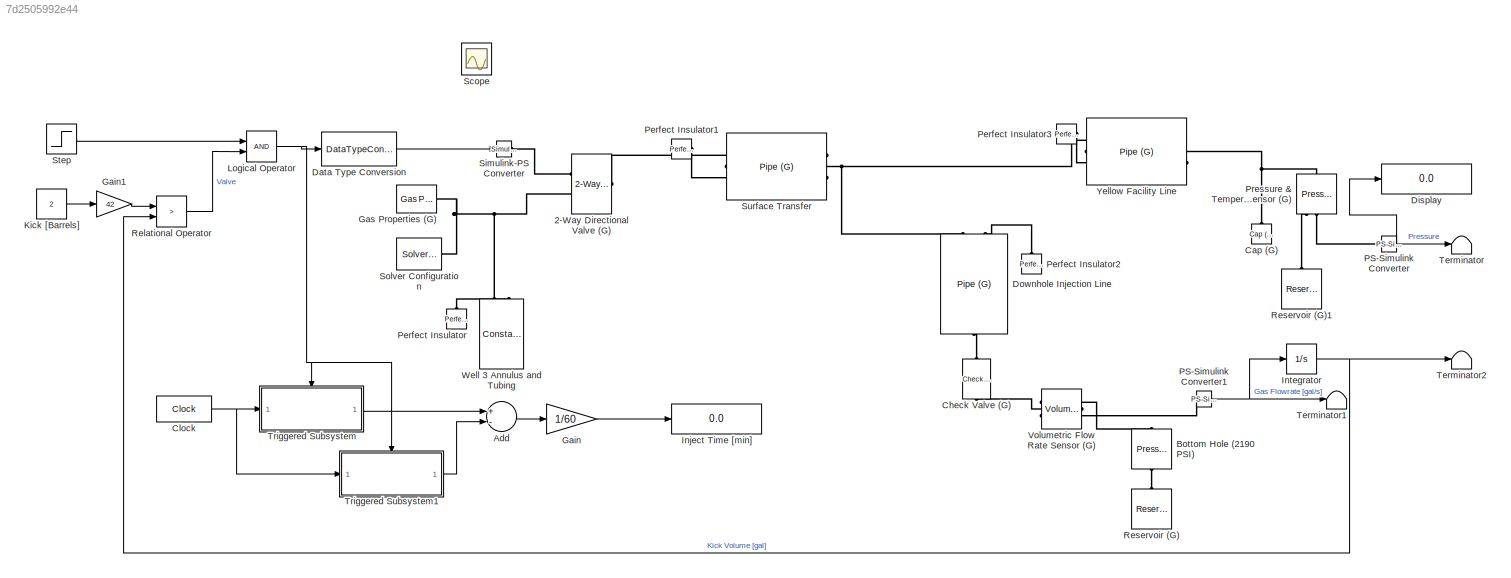
MODEL slx_7d2505992e44
KIND model
CONFIG AbsTol = auto
CONFIG EnableMultiTasking = off
CONFIG FixedStep = auto
CONFIG MaxStep = auto
CONFIG MinStep = auto
CONFIG RelTol = 1e-3
CONFIG SampleTimeConstraint = Unconstrained
CONFIG Solver = ode15s
CONFIG SolverName = ode15s
CONFIG StartTime = 0.0
CONFIG StopTime = 5000
BLOCK [Reference] 2-Way Directional Valve (G)  REF=SimscapeFluids_lib/Gas/Valves & Orifices/Directional Control
Valves/2-Way Directional
Valve (G)
  Ports = [0, 0, 0, 0, 0, 1, 2]
  SourceBlock = SimscapeFluids_lib/Gas/Valves & Orifices/Directional Control\nValves/2-Way Directional\nValve (G)
  SourceProductBaseCode = SH
  SourceProductName = Simscape Fluids
  SourceType = 2-Way Directional\nValve (G)
BLOCK [Sum] Add
  InputSameDT = off
  Inputs = +-
  OutDataTypeStr = Inherit: Inherit via internal rule
  Ports = [2, 1]
  SaturateOnIntegerOverflow = off
BLOCK [Reference] Bottom Hole (2190 PSI)  REF=fl_lib/Gas/Sources/Pressure Source (G)
  Ports = [0, 0, 0, 0, 0, 1, 1]
  SourceBlock = fl_lib/Gas/Sources/Pressure Source (G)
  SourceProductBaseCode = SS
  SourceProductName = Simscape
  SourceType = Pressure Source (G)
BLOCK [Reference] Cap (G)  REF=fl_lib/Gas/Elements/Cap (G)
  Ports = [0, 0, 0, 0, 0, 1]
  SourceBlock = fl_lib/Gas/Elements/Cap (G)
  SourceProductBaseCode = SS
  SourceProductName = Simscape
  SourceType = Cap (G)
BLOCK [Reference] Check Valve (G)  REF=SimscapeFluids_lib/Gas/Valves & Orifices/Directional Control
Valves/Check Valve (G)
  Ports = [0, 0, 0, 0, 0, 1, 1]
  SourceBlock = SimscapeFluids_lib/Gas/Valves & Orifices/Directional Control\nValves/Check Valve (G)
  SourceProductBaseCode = SH
  SourceProductName = Simscape Fluids
  SourceType = Check Valve (G)
BLOCK [Clock] Clock
  Decimation = 1
  DisplayTime = on
BLOCK [DataTypeConversion] Data Type Conversion
  RndMeth = Floor
  SaturateOnIntegerOverflow = off
BLOCK [Display] Display
  Decimation = 1
  Ports = [1]
BLOCK [Reference] Downhole Injection Line  REF=fl_lib/Gas/Elements/Pipe (G)
  Ports = [0, 0, 0, 0, 0, 2, 1]
  SourceBlock = fl_lib/Gas/Elements/Pipe (G)
  SourceProductBaseCode = SS
  SourceProductName = Simscape
  SourceType = Pipe (G)
BLOCK [Gain] Gain
  Gain = 1/60
  OutDataTypeStr = Inherit: Inherit via internal rule
  ParamDataTypeStr = Inherit: Inherit via internal rule
  SaturateOnIntegerOverflow = off
BLOCK [Gain] Gain1
  Gain = 42
  OutDataTypeStr = Inherit: Inherit via internal rule
  ParamDataTypeStr = Inherit: Inherit via internal rule
  SaturateOnIntegerOverflow = off
BLOCK [Reference] Gas Properties (G)  REF=fl_lib/Gas/Utilities/Gas Properties (G)
  Ports = [0, 0, 0, 0, 0, 0, 1]
  SourceBlock = fl_lib/Gas/Utilities/Gas Properties (G)
  SourceProductBaseCode = SS
  SourceProductName = Simscape
  SourceType = Gas Properties (G)
BLOCK [Display] Inject Time [min]
  Decimation = 1
  Ports = [1]
BLOCK [Integrator] Integrator
  Ports = [1, 1]
BLOCK [Constant] Kick [Barrels]
  Value = 2
BLOCK [Logic] Logical Operator
  AllPortsSameDT = off
  OutDataTypeStr = boolean
  Ports = [2, 1]
BLOCK [Reference] PS-Simulink Converter  REF=nesl_utility/PS-Simulink
Converter
  Ports = [0, 1, 0, 0, 0, 1]
  SourceBlock = nesl_utility/PS-Simulink\nConverter
  SourceProductBaseCode = SS
  SourceProductName = Simscape
  SourceType = PS-Simulink\nConverter
BLOCK [Reference] PS-Simulink Converter1  REF=nesl_utility/PS-Simulink
Converter
  Ports = [0, 1, 0, 0, 0, 1]
  SourceBlock = nesl_utility/PS-Simulink\nConverter
  SourceProductBaseCode = SS
  SourceProductName = Simscape
  SourceType = PS-Simulink\nConverter
BLOCK [Reference] Perfect Insulator  REF=fl_lib/Thermal/Thermal Elements/Perfect Insulator
  Ports = [0, 0, 0, 0, 0, 1]
  SourceBlock = fl_lib/Thermal/Thermal Elements/Perfect Insulator
  SourceProductBaseCode = SS
  SourceProductName = Simscape
  SourceType = Perfect Insulator
BLOCK [Reference] Perfect Insulator1  REF=fl_lib/Thermal/Thermal Elements/Perfect Insulator
  Ports = [0, 0, 0, 0, 0, 1]
  SourceBlock = fl_lib/Thermal/Thermal Elements/Perfect Insulator
  SourceProductBaseCode = SS
  SourceProductName = Simscape
  SourceType = Perfect Insulator
BLOCK [Reference] Perfect Insulator2  REF=fl_lib/Thermal/Thermal Elements/Perfect Insulator
  Ports = [0, 0, 0, 0, 0, 1]
  SourceBlock = fl_lib/Thermal/Thermal Elements/Perfect Insulator
  SourceProductBaseCode = SS
  SourceProductName = Simscape
  SourceType = Perfect Insulator
BLOCK [Reference] Perfect Insulator3  REF=fl_lib/Thermal/Thermal Elements/Perfect Insulator
  Ports = [0, 0, 0, 0, 0, 1]
  SourceBlock = fl_lib/Thermal/Thermal Elements/Perfect Insulator
  SourceProductBaseCode = SS
  SourceProductName = Simscape
  SourceType = Perfect Insulator
BLOCK [Reference] Pressure & Temperature Sensor (G)  REF=fl_lib/Gas/Sensors/Pressure &
Temperature Sensor
(G)
  Ports = [0, 0, 0, 0, 0, 1, 3]
  SourceBlock = fl_lib/Gas/Sensors/Pressure &\nTemperature Sensor\n(G)
  SourceProductBaseCode = SS
  SourceProductName = Simscape
  SourceType = Pressure &\nTemperature Sensor\n(G)
BLOCK [RelationalOperator] Relational Operator
  InputSameDT = off
  Operator = >
  OutDataTypeStr = boolean
  Ports = [2, 1]
  RndMeth = Simplest
BLOCK [Reference] Reservoir (G)  REF=fl_lib/Gas/Elements/Reservoir (G)
  Ports = [0, 0, 0, 0, 0, 1]
  SourceBlock = fl_lib/Gas/Elements/Reservoir (G)
  SourceProductBaseCode = SS
  SourceProductName = Simscape
  SourceType = Reservoir (G)
BLOCK [Reference] Reservoir (G)1  REF=fl_lib/Gas/Elements/Reservoir (G)
  Ports = [0, 0, 0, 0, 0, 1]
  SourceBlock = fl_lib/Gas/Elements/Reservoir (G)
  SourceProductBaseCode = SS
  SourceProductName = Simscape
  SourceType = Reservoir (G)
BLOCK [Scope] Scope
  Floating = off
  IOType = viewer
  NumInputPorts = 1
  Ports = []
  ScopeSpecificationString = Simulink.scopes.TimeScopeBlockCfg('CurrentConfiguration', extmgr.ConfigurationSet(extmgr.Configuration('Core','General UI',true),extmgr.Configuration('Core','Source UI',true),extmgr.Configuration('Sources','WiredSimulink',true),extmgr.Configuration('Visuals','Time Domain',true,'SerializedDisplays',{struct('MinYLimReal','1922.05829','MaxYLimReal','3554.5159','YLabelReal','','MinYLimMag','1922.05829...<+3485ch>
BLOCK [Reference] Simulink-PS Converter  REF=nesl_utility/Simulink-PS
Converter
  Ports = [1, 0, 0, 0, 0, 0, 1]
  SourceBlock = nesl_utility/Simulink-PS\nConverter
  SourceProductBaseCode = SS
  SourceProductName = Simscape
  SourceType = Simulink-PS\nConverter
BLOCK [Reference] Solver Configuration  REF=nesl_utility/Solver
Configuration
  Ports = [0, 0, 0, 0, 0, 0, 1]
  SourceBlock = nesl_utility/Solver\nConfiguration
  SourceProductBaseCode = SS
  SourceProductName = Simscape
  SourceType = Solver\nConfiguration
BLOCK [Step] Step
  SampleTime = 0
  Time = 5
BLOCK [Reference] Surface Transfer  REF=fl_lib/Gas/Elements/Pipe (G)
  Ports = [0, 0, 0, 0, 0, 2, 1]
  SourceBlock = fl_lib/Gas/Elements/Pipe (G)
  SourceProductBaseCode = SS
  SourceProductName = Simscape
  SourceType = Pipe (G)
BLOCK [Terminator] Terminator
BLOCK [Terminator] Terminator1
BLOCK [Terminator] Terminator2
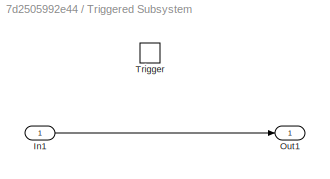
BLOCK [SubSystem] Triggered Subsystem
  Ports = [1, 1, 0, 1]
  RequestExecContextInheritance = off
  TreatAsAtomicUnit = on
BLOCK [Inport] Triggered Subsystem/In1
  IconDisplay = Port number
BLOCK [Outport] Triggered Subsystem/Out1
  IconDisplay = Port number
BLOCK [TriggerPort] Triggered Subsystem/Trigger
  Ports = []
  StatesWhenEnabling = held
  TriggerType = falling
  VariantControl = Variant
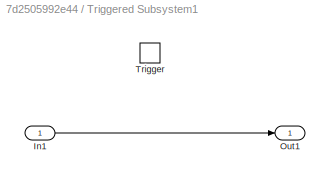
BLOCK [SubSystem] Triggered Subsystem1
  Ports = [1, 1, 0, 1]
  RequestExecContextInheritance = off
  TreatAsAtomicUnit = on
BLOCK [Inport] Triggered Subsystem1/In1
  IconDisplay = Port number
BLOCK [Outport] Triggered Subsystem1/Out1
  IconDisplay = Port number
BLOCK [TriggerPort] Triggered Subsystem1/Trigger
  Ports = []
  StatesWhenEnabling = held
  VariantControl = Variant
BLOCK [Reference] Volumetric Flow Rate Sensor (G)  REF=fl_lib/Gas/Sensors/Volumetric Flow Rate
Sensor (G)
  Ports = [0, 0, 0, 0, 0, 1, 2]
  SourceBlock = fl_lib/Gas/Sensors/Volumetric Flow Rate\nSensor (G)
  SourceProductBaseCode = SS
  SourceProductName = Simscape
  SourceType = Volumetric Flow Rate\nSensor (G)
BLOCK [Reference] Well 3 Annulus and Tubing  REF=fl_lib/Gas/Elements/Constant Volume
Chamber (G)
  Ports = [0, 0, 0, 0, 0, 2]
  SourceBlock = fl_lib/Gas/Elements/Constant Volume\nChamber (G)
  SourceProductBaseCode = SS
  SourceProductName = Simscape
  SourceType = Constant Volume\nChamber (G)
BLOCK [Reference] Yellow Facility Line  REF=fl_lib/Gas/Elements/Pipe (G)
  Ports = [0, 0, 0, 0, 0, 2, 1]
  SourceBlock = fl_lib/Gas/Elements/Pipe (G)
  SourceProductBaseCode = SS
  SourceProductName = Simscape
  SourceType = Pipe (G)
LINE Add:1 -> Gain:1
NET Clock:1 -> Triggered Subsystem1:1, Triggered Subsystem:1
LINE Data Type Conversion:1 -> Simulink-PS Converter:1
LINE Gain1:1 -> Relational Operator:1
LINE Gain:1 -> Inject Time [min]:1
NET Integrator:1 -> Relational Operator:2, Terminator2:1
LINE Kick [Barrels]:1 -> Gain1:1
NET Logical Operator:1 -> Data Type Conversion:1, Triggered Subsystem1:trigger, Triggered Subsystem:trigger
NET PS-Simulink Converter1:1 -> Integrator:1, Terminator1:1
NET PS-Simulink Converter:1 -> Display:1, Terminator:1
LINE Relational Operator:1 -> Logical Operator:2
LINE Step:1 -> Logical Operator:1
LINE Triggered Subsystem/In1:1 -> Triggered Subsystem/Out1:1
LINE Triggered Subsystem1/In1:1 -> Triggered Subsystem1/Out1:1
LINE Triggered Subsystem1:1 -> Add:2
LINE Triggered Subsystem:1 -> Add:1
PLINE 2-Way Directional Valve (G):LConn1 -- Surface Transfer:LConn1
PLINE 2-Way Directional Valve (G):RConn1 -- Simulink-PS Converter:RConn1
PNET net1: 2-Way Directional Valve (G):RConn2 -- Gas Properties (G):RConn1 -- Solver Configuration:RConn1 -- Well 3 Annulus and Tubing:LConn1
PLINE Bottom Hole (2190 PSI):LConn1 -- Reservoir (G):LConn1
PLINE Bottom Hole (2190 PSI):RConn1 -- Volumetric Flow Rate Sensor (G):RConn1
PNET net2: Cap (G):LConn1 -- Pressure & Temperature Sensor (G):LConn1 -- Yellow Facility Line:RConn1
PLINE Check Valve (G):LConn1 -- Downhole Injection Line:RConn1
PLINE Check Valve (G):RConn1 -- Volumetric Flow Rate Sensor (G):LConn1
PNET net3: Downhole Injection Line:LConn1 -- Surface Transfer:RConn1 -- Yellow Facility Line:LConn1
PLINE Downhole Injection Line:LConn2 -- Perfect Insulator2:LConn1
PLINE PS-Simulink Converter1:LConn1 -- Volumetric Flow Rate Sensor (G):RConn2
PLINE PS-Simulink Converter:LConn1 -- Pressure & Temperature Sensor (G):RConn2
PLINE Perfect Insulator1:LConn1 -- Surface Transfer:LConn2
PLINE Perfect Insulator3:LConn1 -- Yellow Facility Line:LConn2
PLINE Perfect Insulator:LConn1 -- Well 3 Annulus and Tubing:LConn2
PLINE Pressure & Temperature Sensor (G):RConn1 -- Reservoir (G)1:LConn1
note: NET lines group one-source signal fan-out (src -> all destinations, sorted); 1:1 wires keep LINE; PNET lines group multi-terminal physical nets as a canonical sorted terminal list (undirected conserving connections); 2-terminal nets keep the pairwise PLINE form
